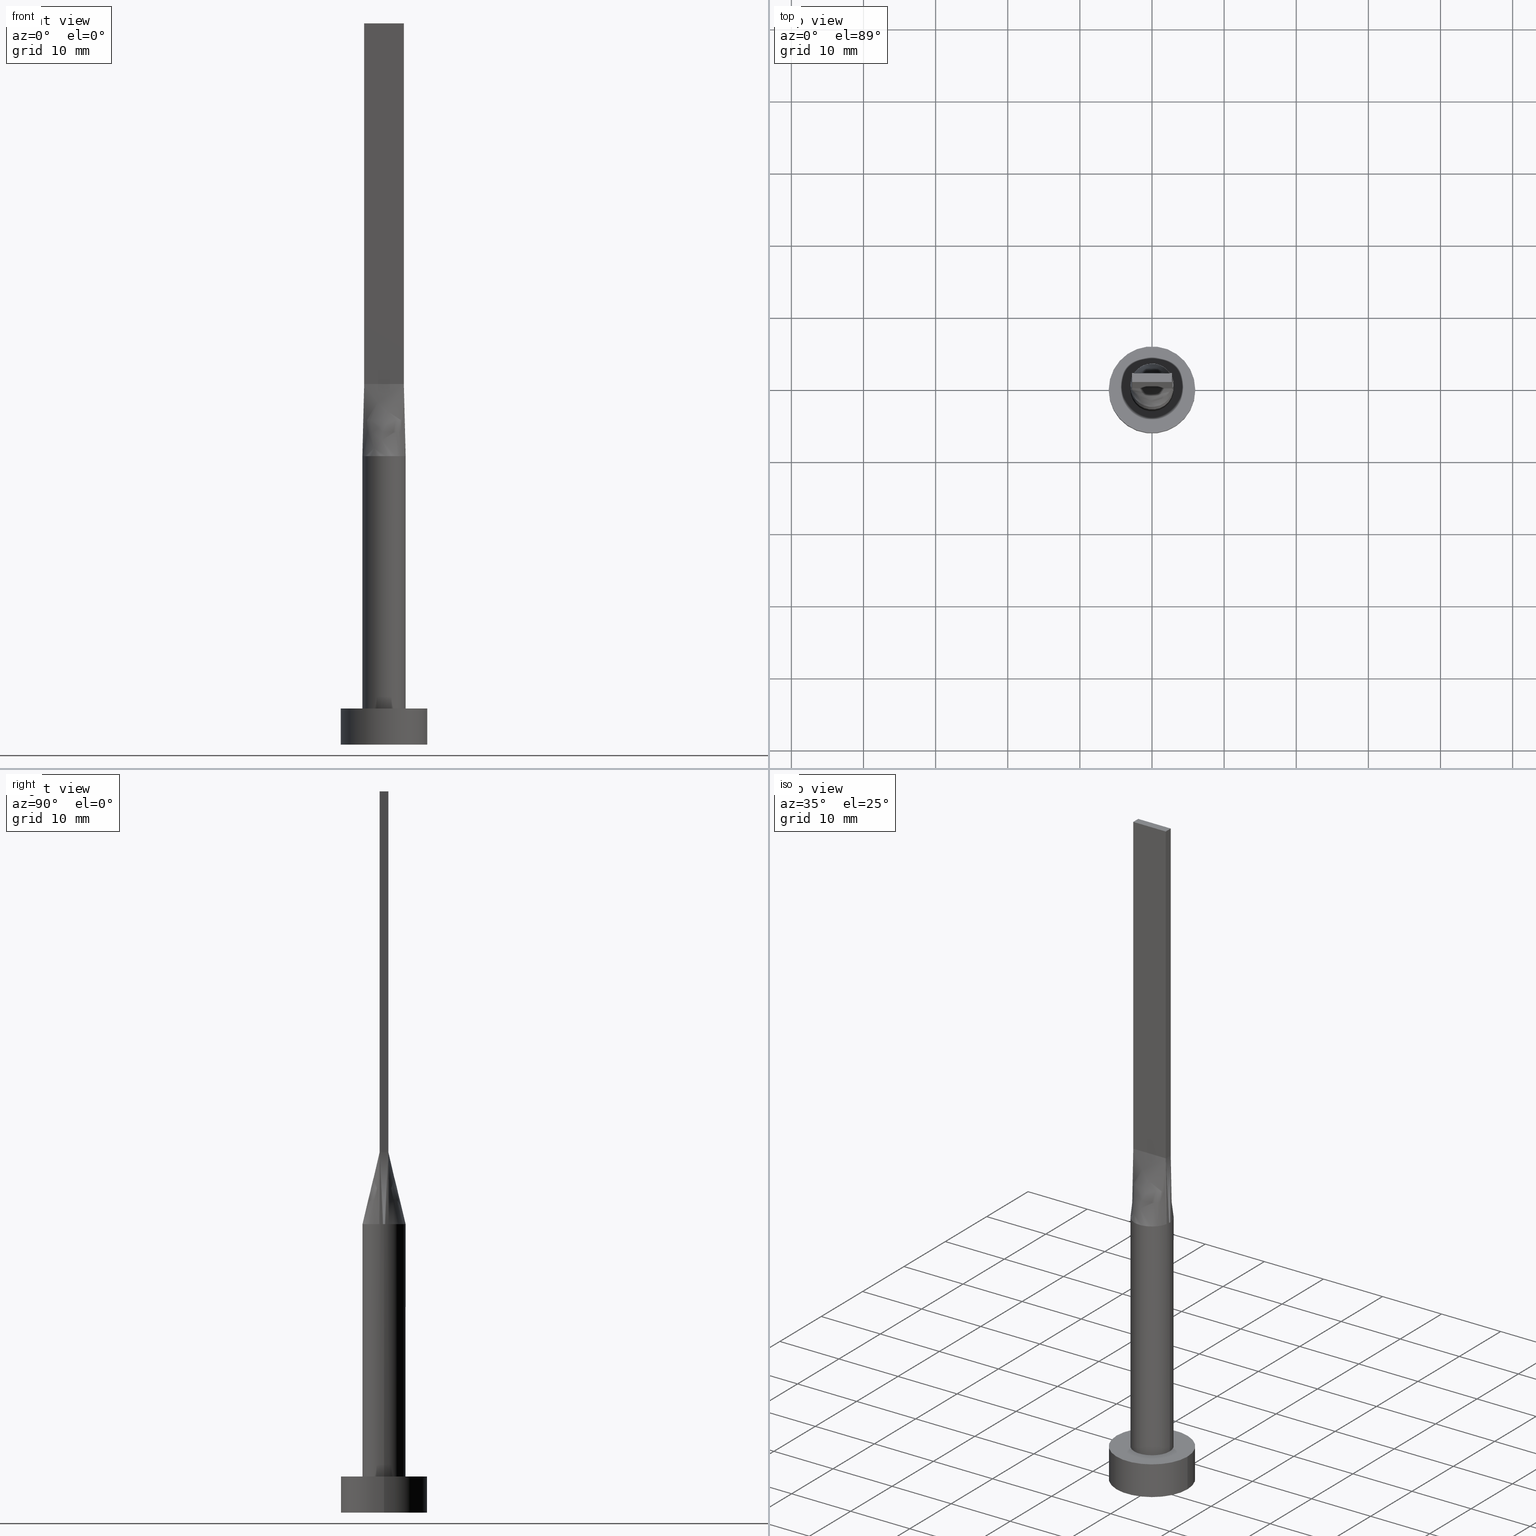
[diagram: canonical four-view strip — front | top / right | iso, engineering-drawing reading convention]
A machine part, canonical four-view strip (front | top / right | iso — engineering-drawing reading convention). The complete STEP part file that produces these views, byte-faithful:
ISO-10303-21;
HEADER;
FILE_DESCRIPTION (( 'STEP AP203' ),
    '1' );
FILE_NAME ('4707.STEP',
    '2023-02-13T11:41:56',
    ( '' ),
    ( '' ),
    'SwSTEP 2.0',
    'SolidWorks 2019',
    '' );
FILE_SCHEMA (( 'CONFIG_CONTROL_DESIGN' ));
ENDSEC;

DATA;
#1 = VERTEX_POINT ( 'NONE', #128 ) ;
#2 = FACE_OUTER_BOUND ( 'NONE', #400, .T. ) ;
#3 = CARTESIAN_POINT ( 'NONE',  ( -6.000000000000000888, 0.000000000000000000, 5.000000000000000000 ) ) ;
#4 = CARTESIAN_POINT ( 'NONE',  ( -2.878980386154874616, 0.8781411751610629368, 39.99999999999999289 ) ) ;
#5 = APPROVAL_STATUS ( 'not_yet_approved' ) ;
#6 = DIRECTION ( 'NONE',  ( 0.000000000000000000, 0.000000000000000000, 1.000000000000000000 ) ) ;
#7 = EDGE_LOOP ( 'NONE', ( #385, #421, #575, #39 ) ) ;
#8 = CARTESIAN_POINT ( 'NONE',  ( 0.4026715616377294915, 2.999999999999999556, 40.00000000000000000 ) ) ;
#9 = ORIENTED_EDGE ( 'NONE', *, *, #275, .T. ) ;
#10 = VECTOR ( 'NONE', #322, 1000.000000000000000 ) ;
#11 = EDGE_CURVE ( 'NONE', #60, #475, #310, .T. ) ;
#12 = ORIENTED_EDGE ( 'NONE', *, *, #442, .F. ) ;
#13 = CARTESIAN_POINT ( 'NONE',  ( -1.829136458871247761, 2.402980488111649660, 39.99999999999999289 ) ) ;
#14 = CARTESIAN_POINT ( 'NONE',  ( 0.8041209001220684938, -2.916015559847872751, 40.00000000000000000 ) ) ;
#15 = VECTOR ( 'NONE', #151, 1000.000000000000000 ) ;
#16 = CARTESIAN_POINT ( 'NONE',  ( -0.4583333333333329263, 0.6000000000000000888, 50.00000000000000000 ) ) ;
#17 = CARTESIAN_POINT ( 'NONE',  ( 2.291666666666666519, -0.5999999999999996447, 50.00000000000000000 ) ) ;
#18 = CARTESIAN_POINT ( 'NONE',  ( -2.328745122427008152, 1.922758842442225280, 39.99999999999998579 ) ) ;
#19 = ADVANCED_FACE ( 'NONE', ( #448 ), #90, .F. ) ;
#20 = CARTESIAN_POINT ( 'NONE',  ( -2.518011668798964653, -1.657305971825550062, 40.00000000000001421 ) ) ;
#21 = ORIENTED_EDGE ( 'NONE', *, *, #505, .F. ) ;
#22 = AXIS2_PLACEMENT_3D ( 'NONE', #544, #96, #402 ) ;
#23 = DIRECTION ( 'NONE',  ( -0.000000000000000000, -0.000000000000000000, -1.000000000000000000 ) ) ;
#24 = CARTESIAN_POINT ( 'NONE',  ( 2.518011668798964209, -1.657305971825550506, 40.00000000000001421 ) ) ;
#25 = ORIENTED_EDGE ( 'NONE', *, *, #540, .T. ) ;
#26 = DIRECTION ( 'NONE',  ( -0.01810162078030962129, -0.003949444533885605735, 0.9998283518749604415 ) ) ;
#27 = CARTESIAN_POINT ( 'NONE',  ( -1.604166666666665408, -0.5999999999999994227, 50.00000000000000000 ) ) ;
#28 = ORIENTED_EDGE ( 'NONE', *, *, #11, .T. ) ;
#29 = MECHANICAL_CONTEXT ( 'NONE', #480, 'mechanical' ) ;
#30 = CARTESIAN_POINT ( 'NONE',  ( -2.750000000000000000, 0.6000000000000001998, 100.0000000000000000 ) ) ;
#31 = ORIENTED_EDGE ( 'NONE', *, *, #325, .T. ) ;
#32 = ADVANCED_FACE ( 'NONE', ( #472 ), #201, .T. ) ;
#33 = APPLICATION_PROTOCOL_DEFINITION ( 'international standard', 'config_control_design', 1994, #422 ) ;
#34 = DIRECTION ( 'NONE',  ( -0.000000000000000000, -0.000000000000000000, -1.000000000000000000 ) ) ;
#35 = AXIS2_PLACEMENT_3D ( 'NONE', #413, #315, #456 ) ;
#36 = SECURITY_CLASSIFICATION ( '', '', #46 ) ;
#37 = APPROVAL_ROLE ( '' ) ;
#38 = DIRECTION ( 'NONE',  ( -1.000000000000000000, 0.000000000000000000, 0.000000000000000000 ) ) ;
#39 = ORIENTED_EDGE ( 'NONE', *, *, #177, .T. ) ;
#40 = FACE_OUTER_BOUND ( 'NONE', #245, .T. ) ;
#41 = ADVANCED_FACE ( 'NONE', ( #520 ), #570, .T. ) ;
#42 = ORIENTED_EDGE ( 'NONE', *, *, #275, .F. ) ;
#43 = DIRECTION ( 'NONE',  ( 0.000000000000000000, 0.000000000000000000, 1.000000000000000000 ) ) ;
#44 = VERTEX_POINT ( 'NONE', #517 ) ;
#45 = CC_DESIGN_APPROVAL ( #182, ( #168 ) ) ;
#46 = SECURITY_CLASSIFICATION_LEVEL ( 'unclassified' ) ;
#47 = CARTESIAN_POINT ( 'NONE',  ( -2.750000000000000000, -0.5999999999999994227, 50.00000000000000000 ) ) ;
#48 = CIRCLE ( 'NONE', #191, 3.000000000000000444 ) ;
#49 = ORIENTED_EDGE ( 'NONE', *, *, #268, .F. ) ;
#50 = CARTESIAN_POINT ( 'NONE',  ( -2.750000000000000000, 0.3999999999999976352, 50.00000000000000000 ) ) ;
#51 = CALENDAR_DATE ( 2023, 13, 2 ) ;
#52 = EDGE_CURVE ( 'NONE', #358, #44, #48, .T. ) ;
#53 = CARTESIAN_POINT ( 'NONE',  ( -0.8041209001220690489, 2.916015559847871419, 40.00000000000000000 ) ) ;
#54 = PERSON_AND_ORGANIZATION ( #186, #298 ) ;
#55 = AXIS2_PLACEMENT_3D ( 'NONE', #246, #558, #334 ) ;
#56 = LINE ( 'NONE', #232, #278 ) ;
#57 = CARTESIAN_POINT ( 'NONE',  ( 0.000000000000000000, 0.000000000000000000, 5.000000000000000000 ) ) ;
#58 = ORIENTED_EDGE ( 'NONE', *, *, #369, .T. ) ;
#59 = EDGE_CURVE ( 'NONE', #314, #87, #380, .T. ) ;
#60 = VERTEX_POINT ( 'NONE', #522 ) ;
#61 = CARTESIAN_POINT ( 'NONE',  ( 1.145833333333333703, 0.6000000000000000888, 50.00000000000000711 ) ) ;
#62 = CARTESIAN_POINT ( 'NONE',  ( 0.4583333333333337034, -0.5999999999999995337, 50.00000000000000000 ) ) ;
#63 = CARTESIAN_POINT ( 'NONE',  ( -2.750000000000000000, -0.5999999999999994227, 100.0000000000000000 ) ) ;
#64 = CIRCLE ( 'NONE', #164, 3.000000000000000444 ) ;
#65 = DIRECTION ( 'NONE',  ( 1.000000000000000000, 0.000000000000000000, 0.000000000000000000 ) ) ;
#66 = EDGE_CURVE ( 'NONE', #418, #104, #378, .T. ) ;
#67 = CARTESIAN_POINT ( 'NONE',  ( -2.520833333333333037, 0.6000000000000000888, 50.00000000000000000 ) ) ;
#68 = CARTESIAN_POINT ( 'NONE',  ( 2.931047284229977734, -0.6395012256501753090, 40.00000000000000000 ) ) ;
#69 = VERTEX_POINT ( 'NONE', #335 ) ;
#70 = DIRECTION ( 'NONE',  ( -0.000000000000000000, -0.000000000000000000, -1.000000000000000000 ) ) ;
#71 = CARTESIAN_POINT ( 'NONE',  ( -2.750000000000000000, 0.6000000000000001998, 100.0000000000000000 ) ) ;
#72 = EDGE_LOOP ( 'NONE', ( #272, #174, #455, #512 ) ) ;
#73 = CARTESIAN_POINT ( 'NONE',  ( 0.8041209001220689379, 2.916015559847871863, 40.00000000000000000 ) ) ;
#74 = DIRECTION ( 'NONE',  ( -0.000000000000000000, 0.000000000000000000, -1.000000000000000000 ) ) ;
#75 = PRODUCT_DEFINITION_FORMATION_WITH_SPECIFIED_SOURCE ( 'LIBOVOLN�', '', #179, .NOT_KNOWN. ) ;
#76 = DIRECTION ( 'NONE',  ( 1.000000000000000000, 0.000000000000000000, 0.000000000000000000 ) ) ;
#77 = CARTESIAN_POINT ( 'NONE',  ( 0.000000000000000000, 0.000000000000000000, 5.000000000000000000 ) ) ;
#78 = EDGE_CURVE ( 'NONE', #1, #215, #474, .T. ) ;
#79 = DIRECTION ( 'NONE',  ( 1.000000000000000000, 0.000000000000000000, 0.000000000000000000 ) ) ;
#80 = CARTESIAN_POINT ( 'NONE',  ( 0.000000000000000000, 0.000000000000000000, 40.00000000000000000 ) ) ;
#81 = PERSON_AND_ORGANIZATION ( #186, #298 ) ;
#82 = CARTESIAN_POINT ( 'NONE',  ( 2.750000000000000000, 0.6000000000000001998, 100.0000000000000000 ) ) ;
#83 = CIRCLE ( 'NONE', #353, 3.000000000000000444 ) ;
#84 = DIRECTION ( 'NONE',  ( 1.000000000000000000, 0.000000000000000000, 0.000000000000000000 ) ) ;
#85 = APPROVAL ( #506, 'NEUR�EN�' ) ;
#86 = CARTESIAN_POINT ( 'NONE',  ( -6.000000000000000888, 0.000000000000000000, 0.000000000000000000 ) ) ;
#87 = VERTEX_POINT ( 'NONE', #199 ) ;
#88 = DESIGN_CONTEXT ( 'detailed design', #422, 'design' ) ;
#89 = CARTESIAN_POINT ( 'NONE',  ( 0.000000000000000000, 0.000000000000000000, 40.00000000000000000 ) ) ;
#90 = PLANE ( 'NONE',  #224 ) ;
#91 = DATE_AND_TIME ( #361, #501 ) ;
#92 = CARTESIAN_POINT ( 'NONE',  ( -2.931047284229977734, -0.6395012256501755310, 40.00000000000000000 ) ) ;
#93 = ORIENTED_EDGE ( 'NONE', *, *, #177, .F. ) ;
#94 = CARTESIAN_POINT ( 'NONE',  ( -3.000000000000000444, 0.000000000000000000, 40.00000000000000000 ) ) ;
#95 = EDGE_CURVE ( 'NONE', #495, #60, #345, .T. ) ;
#96 = DIRECTION ( 'NONE',  ( 0.000000000000000000, 0.000000000000000000, 1.000000000000000000 ) ) ;
#97 = COORDINATED_UNIVERSAL_TIME_OFFSET ( 1, 0, .AHEAD. ) ;
#98 = LINE ( 'NONE', #143, #10 ) ;
#99 = EDGE_LOOP ( 'NONE', ( #185, #93, #428, #337 ) ) ;
#100 = VECTOR ( 'NONE', #376, 1000.000000000000000 ) ;
#101 = CARTESIAN_POINT ( 'NONE',  ( -2.931320679040856803, 0.6395611071856786012, 40.00000000000000000 ) ) ;
#102 = EDGE_LOOP ( 'NONE', ( #414, #327, #42, #183 ) ) ;
#103 = CARTESIAN_POINT ( 'NONE',  ( 1.604166666666666963, 0.6000000000000000888, 50.00000000000000000 ) ) ;
#104 = VERTEX_POINT ( 'NONE', #86 ) ;
#105 = DIRECTION ( 'NONE',  ( 1.000000000000000000, 0.000000000000000000, 0.000000000000000000 ) ) ;
#106 = DIRECTION ( 'NONE',  ( 0.000000000000000000, 0.000000000000000000, 1.000000000000000000 ) ) ;
#107 = VECTOR ( 'NONE', #165, 1000.000000000000000 ) ;
#108 = CARTESIAN_POINT ( 'NONE',  ( 0.4583333333333337589, 0.6000000000000000888, 50.00000000000000711 ) ) ;
#109 = VECTOR ( 'NONE', #461, 1000.000000000000000 ) ;
#110 = CARTESIAN_POINT ( 'NONE',  ( -0.9166666666666656305, -0.5999999999999994227, 50.00000000000000000 ) ) ;
#111 = CARTESIAN_POINT ( 'NONE',  ( 2.931047284229977290, 0.6395012256501767522, 40.00000000000000000 ) ) ;
#112 = CARTESIAN_POINT ( 'NONE',  ( -2.291666666666665630, -0.5999999999999994227, 50.00000000000000000 ) ) ;
#113 = CARTESIAN_POINT ( 'NONE',  ( -2.518011668798964653, 1.657305971825549840, 40.00000000000001421 ) ) ;
#114 = DIRECTION ( 'NONE',  ( 1.000000000000000000, -8.881784197001252323E-15, 0.000000000000000000 ) ) ;
#115 = ORIENTED_EDGE ( 'NONE', *, *, #332, .F. ) ;
#116 =( LENGTH_UNIT ( ) NAMED_UNIT ( * ) SI_UNIT ( .MILLI., .METRE. ) );
#117 = CC_DESIGN_PERSON_AND_ORGANIZATION_ASSIGNMENT ( #81, #258, ( #168 ) ) ;
#118 = CC_DESIGN_APPROVAL ( #85, ( #75 ) ) ;
#119 = LINE ( 'NONE', #530, #510 ) ;
#120 = CARTESIAN_POINT ( 'NONE',  ( 0.000000000000000000, 0.000000000000000000, 40.00000000000000000 ) ) ;
#121 = CYLINDRICAL_SURFACE ( 'NONE', #209, 3.000000000000000444 ) ;
#122 = DIRECTION ( 'NONE',  ( 0.000000000000000000, 0.000000000000000000, 1.000000000000000000 ) ) ;
#123 = DIRECTION ( 'NONE',  ( -1.000000000000000000, 0.000000000000000000, 0.000000000000000000 ) ) ;
#124 = EDGE_CURVE ( 'NONE', #539, #162, #393, .T. ) ;
#125 = B_SPLINE_CURVE_WITH_KNOTS ( 'NONE', 3,
 ( #320, #463, #504, #323, #270, #276, #458, #543, #8, #496, #53, #546, #234, #228, #187, #541, #4, #101 ),
 .UNSPECIFIED., .F., .F.,
 ( 4, 2, 2, 2, 2, 2, 2, 2, 4 ),
 ( 0.000000000000000000, 0.1250000000000000000, 0.2500000000000000000, 0.3750000000000000000, 0.5000000000000000000, 0.6250000000000000000, 0.7500000000000000000, 0.8750000000000000000, 1.000000000000000000 ),
 .UNSPECIFIED. ) ;
#126 = DIRECTION ( 'NONE',  ( 0.000000000000000000, -0.000000000000000000, -1.000000000000000000 ) ) ;
#127 = CARTESIAN_POINT ( 'NONE',  ( 2.931047284229977734, 0.6395012256501758641, 40.00000000000000000 ) ) ;
#128 = CARTESIAN_POINT ( 'NONE',  ( -2.750000000000000000, 0.6000000000000001998, 100.0000000000000000 ) ) ;
#129 = CARTESIAN_POINT ( 'NONE',  ( -3.000000000000000444, 0.000000000000000000, 5.000000000000000000 ) ) ;
#130 = CARTESIAN_POINT ( 'NONE',  ( -2.750000000000000000, 0.6000000000000001998, 50.00000000000000000 ) ) ;
#131 = ORIENTED_EDGE ( 'NONE', *, *, #435, .F. ) ;
#132 = LINE ( 'NONE', #226, #109 ) ;
#133 = ORIENTED_EDGE ( 'NONE', *, *, #350, .T. ) ;
#134 = DIRECTION ( 'NONE',  ( 0.000000000000000000, 0.000000000000000000, 1.000000000000000000 ) ) ;
#135 = ADVANCED_FACE ( 'NONE', ( #40 ), #121, .T. ) ;
#136 = APPROVAL_PERSON_ORGANIZATION ( #206, #182, #37 ) ;
#137 = CALENDAR_DATE ( 2023, 13, 2 ) ;
#138 = CARTESIAN_POINT ( 'NONE',  ( 2.750000000000000000, 0.6000000000000001998, 50.00000000000000000 ) ) ;
#139 = AXIS2_PLACEMENT_3D ( 'NONE', #170, #490, #306 ) ;
#140 = CARTESIAN_POINT ( 'NONE',  ( -2.750000000000000000, -0.4000000000000021316, 50.00000000000000000 ) ) ;
#141 = ADVANCED_FACE ( 'NONE', ( #261 ), #399, .F. ) ;
#142 = DATE_AND_TIME ( #137, #440 ) ;
#143 = CARTESIAN_POINT ( 'NONE',  ( -2.840523642114988423, 0.6197506128250878099, 45.00000000000000000 ) ) ;
#144 = EDGE_LOOP ( 'NONE', ( #205, #305, #176, #498 ) ) ;
#145 = AXIS2_PLACEMENT_3D ( 'NONE', #198, #157, #105 ) ;
#146 = CARTESIAN_POINT ( 'NONE',  ( -2.878980386154874616, 0.8781411751610629368, 39.99999999999999289 ) ) ;
#147 = EDGE_LOOP ( 'NONE', ( #133, #523, #21, #131 ) ) ;
#148 = FACE_OUTER_BOUND ( 'NONE', #156, .T. ) ;
#149 = CARTESIAN_POINT ( 'NONE',  ( 1.833333333333333481, -0.5999999999999996447, 50.00000000000000000 ) ) ;
#150 = CARTESIAN_POINT ( 'NONE',  ( 2.518011668798964209, 1.657305971825549840, 40.00000000000001421 ) ) ;
#151 = DIRECTION ( 'NONE',  ( -0.000000000000000000, -0.000000000000000000, -1.000000000000000000 ) ) ;
#152 = ADVANCED_FACE ( 'NONE', ( #349 ), #532, .F. ) ;
#153 = PLANE ( 'NONE',  #55 ) ;
#154 = AXIS2_PLACEMENT_3D ( 'NONE', #302, #308, #84 ) ;
#155 = CARTESIAN_POINT ( 'NONE',  ( 2.878980386154875060, -0.8781411751610634919, 40.00000000000000000 ) ) ;
#156 = EDGE_LOOP ( 'NONE', ( #31, #417 ) ) ;
#157 = DIRECTION ( 'NONE',  ( 0.000000000000000000, 0.000000000000000000, 1.000000000000000000 ) ) ;
#158 = DIRECTION ( 'NONE',  ( 0.000000000000000000, 0.000000000000000000, 1.000000000000000000 ) ) ;
#159 = EDGE_CURVE ( 'NONE', #60, #69, #538, .T. ) ;
#160 = DIRECTION ( 'NONE',  ( 0.000000000000000000, -1.000000000000000000, 0.000000000000000000 ) ) ;
#161 = CARTESIAN_POINT ( 'NONE',  ( 2.750000000000000000, -0.5999999999999997558, 50.00000000000000000 ) ) ;
#162 = VERTEX_POINT ( 'NONE', #447 ) ;
#163 = APPLICATION_PROTOCOL_DEFINITION ( 'international standard', 'config_control_design', 1994, #480 ) ;
#164 = AXIS2_PLACEMENT_3D ( 'NONE', #120, #122, #79 ) ;
#165 = DIRECTION ( 'NONE',  ( 0.000000000000000000, 1.000000000000000000, 0.000000000000000000 ) ) ;
#166 = AXIS2_PLACEMENT_3D ( 'NONE', #427, #528, #284 ) ;
#167 = CARTESIAN_POINT ( 'NONE',  ( 2.750000000000000000, -0.5999999999999997558, 100.0000000000000000 ) ) ;
#168 = PRODUCT_DEFINITION ( 'NEZN�M�', '', #75, #88 ) ;
#169 = COORDINATED_UNIVERSAL_TIME_OFFSET ( 1, 0, .AHEAD. ) ;
#170 = CARTESIAN_POINT ( 'NONE',  ( -2.750000000000000000, -0.5999999999999994227, 100.0000000000000000 ) ) ;
#171 = ORIENTED_EDGE ( 'NONE', *, *, #442, .T. ) ;
#172 = FACE_OUTER_BOUND ( 'NONE', #279, .T. ) ;
#173 = AXIS2_PLACEMENT_3D ( 'NONE', #252, #446, #76 ) ;
#174 = ORIENTED_EDGE ( 'NONE', *, *, #518, .F. ) ;
#175 = CARTESIAN_POINT ( 'NONE',  ( 2.999207587164657074, 0.2156168166748827775, 40.00000000000000000 ) ) ;
#176 = ORIENTED_EDGE ( 'NONE', *, *, #268, .T. ) ;
#177 = EDGE_CURVE ( 'NONE', #547, #301, #214, .T. ) ;
#178 = CARTESIAN_POINT ( 'NONE',  ( -2.931047284229977290, 0.6395012256501761971, 40.00000000000000000 ) ) ;
#179 = PRODUCT ( '4707', '4707', '', ( #29 ) ) ;
#180 = LINE ( 'NONE', #362, #239 ) ;
#181 = CARTESIAN_POINT ( 'NONE',  ( -2.999207587164656630, 0.2156168166748832771, 40.00000000000000000 ) ) ;
#182 = APPROVAL ( #346, 'NEUR�EN�' ) ;
#183 = ORIENTED_EDGE ( 'NONE', *, *, #59, .T. ) ;
#184 = DIRECTION ( 'NONE',  ( 0.000000000000000000, -1.000000000000000000, 0.000000000000000000 ) ) ;
#185 = ORIENTED_EDGE ( 'NONE', *, *, #578, .T. ) ;
#186 = PERSON ( 'NEUR�EN�', 'NEUR�EN�', 'NEUR�EN�', ('NEUR�EN�'), ('NEUR�EN�'), ('NEUR�EN�') ) ;
#187 = CARTESIAN_POINT ( 'NONE',  ( -2.518011668798964653, 1.657305971825549840, 40.00000000000001421 ) ) ;
#188 = ORIENTED_EDGE ( 'NONE', *, *, #159, .F. ) ;
#189 = CARTESIAN_POINT ( 'NONE',  ( -2.750000000000000000, 0.6000000000000001998, 50.00000000000000000 ) ) ;
#190 = CARTESIAN_POINT ( 'NONE',  ( 0.2291666666666668517, -0.5999999999999995337, 50.00000000000000000 ) ) ;
#191 = AXIS2_PLACEMENT_3D ( 'NONE', #342, #106, #65 ) ;
#192 = ORIENTED_EDGE ( 'NONE', *, *, #11, .F. ) ;
#193 = ADVANCED_FACE ( 'NONE', ( #354 ), #303, .T. ) ;
#194 = DIRECTION ( 'NONE',  ( 1.000000000000000000, 0.000000000000000000, -0.000000000000000000 ) ) ;
#195 = DIRECTION ( 'NONE',  ( -0.01810162078030962129, -0.003949444533885649103, -0.9998283518749604415 ) ) ;
#196 = CARTESIAN_POINT ( 'NONE',  ( -0.4026715616377299356, 2.999999999999999556, 40.00000000000000000 ) ) ;
#197 = CARTESIAN_POINT ( 'NONE',  ( 1.829136458871248205, -2.402980488111650992, 40.00000000000000711 ) ) ;
#198 = CARTESIAN_POINT ( 'NONE',  ( 0.000000000000000000, 0.000000000000000000, 5.000000000000000000 ) ) ;
#199 = CARTESIAN_POINT ( 'NONE',  ( -2.931315536094174057, -0.6395601373676296220, 40.00000000000000000 ) ) ;
#200 = APPROVAL_PERSON_ORGANIZATION ( #359, #415, #580 ) ;
#201 = PLANE ( 'NONE',  #166 ) ;
#202 = ORIENTED_EDGE ( 'NONE', *, *, #59, .F. ) ;
#203 = PERSON_AND_ORGANIZATION ( #186, #298 ) ;
#204 = DIRECTION ( 'NONE',  ( 0.000000000000000000, -1.000000000000000000, 0.000000000000000000 ) ) ;
#205 = ORIENTED_EDGE ( 'NONE', *, *, #363, .T. ) ;
#206 = PERSON_AND_ORGANIZATION ( #186, #298 ) ;
#207 = CARTESIAN_POINT ( 'NONE',  ( 2.750000000000000000, -0.5999999999999997558, 100.0000000000000000 ) ) ;
#208 = ORIENTED_EDGE ( 'NONE', *, *, #404, .T. ) ;
#209 = AXIS2_PLACEMENT_3D ( 'NONE', #80, #34, #38 ) ;
#210 = CALENDAR_DATE ( 2023, 13, 2 ) ;
#211 = ADVANCED_FACE ( 'NONE', ( #172 ), #449, .T. ) ;
#212 = CARTESIAN_POINT ( 'NONE',  ( 2.931047284229977290, -0.6395012256501766412, 40.00000000000000000 ) ) ;
#213 = ORIENTED_EDGE ( 'NONE', *, *, #394, .T. ) ;
#214 = LINE ( 'NONE', #82, #311 ) ;
#215 = VERTEX_POINT ( 'NONE', #130 ) ;
#216 = DATE_TIME_ROLE ( 'creation_date' ) ;
#217 = LINE ( 'NONE', #167, #107 ) ;
#218 = VECTOR ( 'NONE', #184, 1000.000000000000000 ) ;
#219 = AXIS2_PLACEMENT_3D ( 'NONE', #484, #441, #266 ) ;
#220 = EDGE_CURVE ( 'NONE', #539, #547, #217, .T. ) ;
#221 = ORIENTED_EDGE ( 'NONE', *, *, #571, .F. ) ;
#222 = SHAPE_DEFINITION_REPRESENTATION ( #406, #290 ) ;
#223 = CARTESIAN_POINT ( 'NONE',  ( -2.750000000000000000, -0.2000000000000034528, 50.00000000000000000 ) ) ;
#224 = AXIS2_PLACEMENT_3D ( 'NONE', #297, #477, #74 ) ;
#225 = EDGE_LOOP ( 'NONE', ( #221, #486, #58, #445 ) ) ;
#226 = CARTESIAN_POINT ( 'NONE',  ( 2.750000000000000000, 0.6000000000000001998, 100.0000000000000000 ) ) ;
#227 = ADVANCED_FACE ( 'NONE', ( #313 ), #494, .T. ) ;
#228 = CARTESIAN_POINT ( 'NONE',  ( -2.328745122427008152, 1.922758842442225280, 39.99999999999998579 ) ) ;
#229 = VECTOR ( 'NONE', #204, 1000.000000000000000 ) ;
#230 =( GEOMETRIC_REPRESENTATION_CONTEXT ( 3 ) GLOBAL_UNCERTAINTY_ASSIGNED_CONTEXT ( ( #312 ) ) GLOBAL_UNIT_ASSIGNED_CONTEXT ( ( #116, #493, #396 ) ) REPRESENTATION_CONTEXT ( 'NONE', 'WORKASPACE' ) );
#231 = PERSON_AND_ORGANIZATION_ROLE ( 'creator' ) ;
#232 = CARTESIAN_POINT ( 'NONE',  ( 2.840523642114988867, -0.6197506128250874768, 45.00000000000000000 ) ) ;
#233 = AXIS2_PLACEMENT_3D ( 'NONE', #535, #577, #481 ) ;
#234 = CARTESIAN_POINT ( 'NONE',  ( -1.829136458871247761, 2.402980488111649660, 39.99999999999999289 ) ) ;
#235 = ORIENTED_EDGE ( 'NONE', *, *, #52, .T. ) ;
#236 = CARTESIAN_POINT ( 'NONE',  ( -1.517787371616671654, 2.616501225271827380, 40.00000000000000000 ) ) ;
#237 = CARTESIAN_POINT ( 'NONE',  ( -1.145833333333332149, -0.5999999999999994227, 50.00000000000000000 ) ) ;
#238 = PRODUCT_RELATED_PRODUCT_CATEGORY ( 'detail', '', ( #179 ) ) ;
#239 = VECTOR ( 'NONE', #70, 1000.000000000000000 ) ;
#240 = CARTESIAN_POINT ( 'NONE',  ( 0.000000000000000000, 0.000000000000000000, 0.000000000000000000 ) ) ;
#241 = CARTESIAN_POINT ( 'NONE',  ( 0.9166666666666669627, -0.5999999999999996447, 50.00000000000000000 ) ) ;
#242 = AXIS2_PLACEMENT_3D ( 'NONE', #564, #158, #114 ) ;
#243 = FACE_OUTER_BOUND ( 'NONE', #147, .T. ) ;
#244 = CARTESIAN_POINT ( 'NONE',  ( -2.792624347712116428, -1.135030881087314647, 40.00000000000000711 ) ) ;
#245 = EDGE_LOOP ( 'NONE', ( #192, #355, #254, #282, #208, #171 ) ) ;
#246 = CARTESIAN_POINT ( 'NONE',  ( 0.000000000000000000, 0.000000000000000000, 5.000000000000000000 ) ) ;
#247 = CC_DESIGN_PERSON_AND_ORGANIZATION_ASSIGNMENT ( #411, #457, ( #75 ) ) ;
#248 = CARTESIAN_POINT ( 'NONE',  ( -0.8041209001220698260, -2.916015559847872307, 40.00000000000000000 ) ) ;
#249 = CARTESIAN_POINT ( 'NONE',  ( -1.145833333333332815, 0.6000000000000000888, 50.00000000000000000 ) ) ;
#250 = CIRCLE ( 'NONE', #145, 3.000000000000000444 ) ;
#251 = CARTESIAN_POINT ( 'NONE',  ( -2.750000000000000000, -0.5999999999999994227, 50.00000000000000000 ) ) ;
#252 = CARTESIAN_POINT ( 'NONE',  ( 0.000000000000000000, 0.000000000000000000, 5.000000000000000000 ) ) ;
#253 = LINE ( 'NONE', #30, #229 ) ;
#254 = ORIENTED_EDGE ( 'NONE', *, *, #533, .F. ) ;
#255 = LINE ( 'NONE', #576, #511 ) ;
#256 = CARTESIAN_POINT ( 'NONE',  ( 2.750000000000000000, -0.5999999999999997558, 50.00000000000000000 ) ) ;
#257 = CC_DESIGN_PERSON_AND_ORGANIZATION_ASSIGNMENT ( #203, #438, ( #179 ) ) ;
#258 = PERSON_AND_ORGANIZATION_ROLE ( 'creator' ) ;
#259 = VECTOR ( 'NONE', #357, 1000.000000000000000 ) ;
#260 = VECTOR ( 'NONE', #26, 1000.000000000000000 ) ;
#261 = FACE_OUTER_BOUND ( 'NONE', #542, .T. ) ;
#262 = ORIENTED_EDGE ( 'NONE', *, *, #369, .F. ) ;
#263 = FACE_OUTER_BOUND ( 'NONE', #7, .T. ) ;
#264 = CARTESIAN_POINT ( 'NONE',  ( 2.750000000000000000, -0.5999999999999997558, 100.0000000000000000 ) ) ;
#265 = DIRECTION ( 'NONE',  ( -0.000000000000000000, -0.000000000000000000, -1.000000000000000000 ) ) ;
#266 = DIRECTION ( 'NONE',  ( -1.000000000000000000, 0.000000000000000000, 0.000000000000000000 ) ) ;
#267 = DIRECTION ( 'NONE',  ( -0.000000000000000000, -0.000000000000000000, -1.000000000000000000 ) ) ;
#268 = EDGE_CURVE ( 'NONE', #452, #539, #347, .T. ) ;
#269 = ORIENTED_EDGE ( 'NONE', *, *, #386, .F. ) ;
#270 = CARTESIAN_POINT ( 'NONE',  ( 2.328745122427009040, 1.922758842442225946, 39.99999999999999289 ) ) ;
#271 = CIRCLE ( 'NONE', #333, 3.000000000000000444 ) ;
#272 = ORIENTED_EDGE ( 'NONE', *, *, #293, .T. ) ;
#273 = B_SPLINE_SURFACE_WITH_KNOTS ( 'NONE', 3, 1, ( 
 ( #178, #500 ),
 ( #367, #50 ),
 ( #181, #365 ),
 ( #549, #223 ),
 ( #453, #140 ),
 ( #92, #360 ) ),
 .UNSPECIFIED., .F., .F., .F.,
 ( 4, 2, 4 ),
 ( 2, 2 ),
 ( 0.000000000000000000, 0.5000000000000000000, 1.000000000000000000 ),
 ( 0.000000000000000000, 1.000000000000000000 ),
 .UNSPECIFIED. ) ;
#274 = DIRECTION ( 'NONE',  ( -0.000000000000000000, -0.000000000000000000, -1.000000000000000000 ) ) ;
#275 = EDGE_CURVE ( 'NONE', #314, #162, #119, .T. ) ;
#276 = CARTESIAN_POINT ( 'NONE',  ( 1.829136458871247761, 2.402980488111650992, 39.99999999999997868 ) ) ;
#277 = CARTESIAN_POINT ( 'NONE',  ( -2.931320679040856803, 0.6395611071856786012, 40.00000000000000000 ) ) ;
#278 = VECTOR ( 'NONE', #509, 1000.000000000000000 ) ;
#279 = EDGE_LOOP ( 'NONE', ( #307, #536, #389, #437, #269 ) ) ;
#280 = CARTESIAN_POINT ( 'NONE',  ( 6.000000000000000888, 7.347880794884120722E-16, 0.000000000000000000 ) ) ;
#281 = EDGE_LOOP ( 'NONE', ( #12, #115 ) ) ;
#282 = ORIENTED_EDGE ( 'NONE', *, *, #394, .F. ) ;
#283 = CARTESIAN_POINT ( 'NONE',  ( 2.750000000000000000, 0.6000000000000001998, 50.00000000000000000 ) ) ;
#284 = DIRECTION ( 'NONE',  ( 1.000000000000000000, 0.000000000000000000, -0.000000000000000000 ) ) ;
#285 = EDGE_CURVE ( 'NONE', #1, #452, #253, .T. ) ;
#286 = CARTESIAN_POINT ( 'NONE',  ( 2.931332910560268790, -0.6395638358681950963, 40.00000000000000000 ) ) ;
#287 = CARTESIAN_POINT ( 'NONE',  ( 2.520833333333333037, -0.5999999999999996447, 50.00000000000000000 ) ) ;
#288 = CIRCLE ( 'NONE', #154, 6.000000000000000888 ) ;
#289 = ORIENTED_EDGE ( 'NONE', *, *, #518, .T. ) ;
#290 = ADVANCED_BREP_SHAPE_REPRESENTATION ( '4707', ( #316, #552 ), #230 ) ;
#291 = CARTESIAN_POINT ( 'NONE',  ( 0.9166666666666670737, 0.6000000000000000888, 50.00000000000000711 ) ) ;
#292 = CARTESIAN_POINT ( 'NONE',  ( -0.4583333333333328152, -0.5999999999999994227, 50.00000000000000000 ) ) ;
#293 = EDGE_CURVE ( 'NONE', #215, #314, #388, .T. ) ;
#294 = LINE ( 'NONE', #473, #100 ) ;
#295 = CARTESIAN_POINT ( 'NONE',  ( -6.000000000000000888, 0.000000000000000000, 5.000000000000000000 ) ) ;
#296 = LINE ( 'NONE', #326, #260 ) ;
#297 = CARTESIAN_POINT ( 'NONE',  ( -2.750000000000000000, 0.6000000000000001998, 100.0000000000000000 ) ) ;
#298 = ORGANIZATION ( 'NEUR�EN�', 'NEUR�EN�', '' ) ;
#299 = DIRECTION ( 'NONE',  ( 1.000000000000000000, -5.913830031739115543E-17, 0.000000000000000000 ) ) ;
#300 = LOCAL_TIME ( 12, 41, 56.00000000000000000, #401 ) ;
#301 = VERTEX_POINT ( 'NONE', #138 ) ;
#302 = CARTESIAN_POINT ( 'NONE',  ( 0.000000000000000000, 0.000000000000000000, 0.000000000000000000 ) ) ;
#303 = CYLINDRICAL_SURFACE ( 'NONE', #553, 6.000000000000000888 ) ;
#304 = ADVANCED_FACE ( 'NONE', ( #2 ), #273, .T. ) ;
#305 = ORIENTED_EDGE ( 'NONE', *, *, #285, .T. ) ;
#306 = DIRECTION ( 'NONE',  ( -1.000000000000000000, 5.913830031739115543E-17, 0.000000000000000000 ) ) ;
#307 = ORIENTED_EDGE ( 'NONE', *, *, #95, .T. ) ;
#308 = DIRECTION ( 'NONE',  ( 0.000000000000000000, 0.000000000000000000, 1.000000000000000000 ) ) ;
#309 = CARTESIAN_POINT ( 'NONE',  ( 2.750000000000000000, -0.3999999999999973022, 50.00000000000000000 ) ) ;
#310 = LINE ( 'NONE', #492, #336 ) ;
#311 = VECTOR ( 'NONE', #443, 1000.000000000000000 ) ;
#312 = UNCERTAINTY_MEASURE_WITH_UNIT (LENGTH_MEASURE( 1.000000000000000082E-05 ), #116, 'distance_accuracy_value', 'NONE');
#313 = FACE_OUTER_BOUND ( 'NONE', #515, .T. ) ;
#314 = VERTEX_POINT ( 'NONE', #47 ) ;
#315 = DIRECTION ( 'NONE',  ( 0.000000000000000000, 0.000000000000000000, 1.000000000000000000 ) ) ;
#316 = MANIFOLD_SOLID_BREP ( 'P�idat vysunut�m5', #482 ) ;
#317 = VERTEX_POINT ( 'NONE', #507 ) ;
#318 = COORDINATED_UNIVERSAL_TIME_OFFSET ( 1, 0, .AHEAD. ) ;
#319 = LINE ( 'NONE', #94, #410 ) ;
#320 = CARTESIAN_POINT ( 'NONE',  ( 2.931303352270923757, 0.6395574164693091923, 40.00000000000000000 ) ) ;
#321 = EDGE_CURVE ( 'NONE', #358, #215, #98, .T. ) ;
#322 = DIRECTION ( 'NONE',  ( 0.01810162078030957619, -0.003949444533885573642, 0.9998283518749604415 ) ) ;
#323 = CARTESIAN_POINT ( 'NONE',  ( 2.518011668798964209, 1.657305971825549840, 40.00000000000001421 ) ) ;
#324 = ORIENTED_EDGE ( 'NONE', *, *, #124, .F. ) ;
#325 = EDGE_CURVE ( 'NONE', #418, #317, #407, .T. ) ;
#326 = CARTESIAN_POINT ( 'NONE',  ( 2.840523642114988867, 0.6197506128250880320, 45.00000000000000000 ) ) ;
#327 = ORIENTED_EDGE ( 'NONE', *, *, #386, .T. ) ;
#328 = CARTESIAN_POINT ( 'NONE',  ( 2.520833333333333037, 0.6000000000000000888, 50.00000000000000000 ) ) ;
#329 = CARTESIAN_POINT ( 'NONE',  ( 2.792624347712116872, -1.135030881087315757, 40.00000000000001421 ) ) ;
#330 = LINE ( 'NONE', #429, #431 ) ;
#331 = CARTESIAN_POINT ( 'NONE',  ( -1.833333333333332149, -0.5999999999999994227, 50.00000000000000000 ) ) ;
#332 = EDGE_CURVE ( 'NONE', #475, #579, #271, .T. ) ;
#333 = AXIS2_PLACEMENT_3D ( 'NONE', #57, #6, #408 ) ;
#334 = DIRECTION ( 'NONE',  ( 1.000000000000000000, 0.000000000000000000, -0.000000000000000000 ) ) ;
#335 = CARTESIAN_POINT ( 'NONE',  ( 2.931303352270923757, 0.6395574164693091923, 40.00000000000000000 ) ) ;
#336 = VECTOR ( 'NONE', #265, 1000.000000000000000 ) ;
#337 = ORIENTED_EDGE ( 'NONE', *, *, #124, .T. ) ;
#338 = CARTESIAN_POINT ( 'NONE',  ( 2.328745122427009040, 1.922758842442225946, 39.99999999999999289 ) ) ;
#339 = CARTESIAN_POINT ( 'NONE',  ( -0.2291666666666664076, -0.5999999999999995337, 50.00000000000000000 ) ) ;
#340 = VERTEX_POINT ( 'NONE', #280 ) ;
#341 = PLANE ( 'NONE',  #569 ) ;
#342 = CARTESIAN_POINT ( 'NONE',  ( 0.000000000000000000, 0.000000000000000000, 40.00000000000000000 ) ) ;
#343 = LOCAL_TIME ( 12, 41, 56.00000000000000000, #531 ) ;
#344 = CARTESIAN_POINT ( 'NONE',  ( 2.750000000000000000, 0.2000000000000038136, 50.00000000000000000 ) ) ;
#345 = CIRCLE ( 'NONE', #242, 3.000000000000000444 ) ;
#346 = APPROVAL_STATUS ( 'not_yet_approved' ) ;
#347 = LINE ( 'NONE', #451, #259 ) ;
#348 = CALENDAR_DATE ( 2023, 13, 2 ) ;
#349 = FACE_OUTER_BOUND ( 'NONE', #99, .T. ) ;
#350 = EDGE_CURVE ( 'NONE', #69, #358, #125, .T. ) ;
#351 = ORIENTED_EDGE ( 'NONE', *, *, #425, .F. ) ;
#352 = CARTESIAN_POINT ( 'NONE',  ( 2.750000000000000000, 0.6000000000000001998, 100.0000000000000000 ) ) ;
#353 = AXIS2_PLACEMENT_3D ( 'NONE', #416, #134, #405 ) ;
#354 = FACE_OUTER_BOUND ( 'NONE', #225, .T. ) ;
#355 = ORIENTED_EDGE ( 'NONE', *, *, #95, .F. ) ;
#356 = PERSON_AND_ORGANIZATION ( #186, #298 ) ;
#357 = DIRECTION ( 'NONE',  ( 1.000000000000000000, -5.913830031739115543E-17, 0.000000000000000000 ) ) ;
#358 = VERTEX_POINT ( 'NONE', #277 ) ;
#359 = PERSON_AND_ORGANIZATION ( #186, #298 ) ;
#360 = CARTESIAN_POINT ( 'NONE',  ( -2.750000000000000000, -0.5999999999999995337, 50.00000000000000000 ) ) ;
#361 = CALENDAR_DATE ( 2023, 13, 2 ) ;
#362 = CARTESIAN_POINT ( 'NONE',  ( 6.000000000000000888, 7.347880794884120722E-16, 5.000000000000000000 ) ) ;
#363 = EDGE_CURVE ( 'NONE', #547, #1, #132, .T. ) ;
#364 = CIRCLE ( 'NONE', #173, 6.000000000000000888 ) ;
#365 = CARTESIAN_POINT ( 'NONE',  ( -2.750000000000000000, 0.1999999999999964306, 50.00000000000000000 ) ) ;
#366 = DATE_TIME_ROLE ( 'classification_date' ) ;
#367 = CARTESIAN_POINT ( 'NONE',  ( -2.976487486186430331, 0.4312336333497662211, 40.00000000000000000 ) ) ;
#368 = ORIENTED_EDGE ( 'NONE', *, *, #52, .F. ) ;
#369 = EDGE_CURVE ( 'NONE', #340, #104, #489, .T. ) ;
#370 = CARTESIAN_POINT ( 'NONE',  ( 0.4026715616377294915, 2.999999999999999556, 40.00000000000000000 ) ) ;
#371 = ORIENTED_EDGE ( 'NONE', *, *, #325, .F. ) ;
#372 = APPROVAL_PERSON_ORGANIZATION ( #356, #85, #508 ) ;
#373 = ORIENTED_EDGE ( 'NONE', *, *, #350, .F. ) ;
#374 = CARTESIAN_POINT ( 'NONE',  ( 2.291666666666666519, 0.6000000000000000888, 50.00000000000000000 ) ) ;
#375 = CARTESIAN_POINT ( 'NONE',  ( 2.328745122427008152, -1.922758842442226390, 39.99999999999999289 ) ) ;
#376 = DIRECTION ( 'NONE',  ( -1.000000000000000000, -0.000000000000000000, -0.000000000000000000 ) ) ;
#377 = CC_DESIGN_PERSON_AND_ORGANIZATION_ASSIGNMENT ( #54, #231, ( #75 ) ) ;
#378 = LINE ( 'NONE', #295, #15 ) ;
#379 = CARTESIAN_POINT ( 'NONE',  ( -2.931047284229977290, 0.6395012256501755310, 40.00000000000000000 ) ) ;
#380 = LINE ( 'NONE', #561, #412 ) ;
#381 = CARTESIAN_POINT ( 'NONE',  ( -0.2291666666666662688, 0.6000000000000000888, 50.00000000000000711 ) ) ;
#382 = CARTESIAN_POINT ( 'NONE',  ( -2.328745122427009928, -1.922758842442225058, 39.99999999999997868 ) ) ;
#383 = DIRECTION ( 'NONE',  ( -0.000000000000000000, 1.000000000000000000, -0.000000000000000000 ) ) ;
#384 = CARTESIAN_POINT ( 'NONE',  ( 0.4026715616377293805, -3.000000000000001332, 40.00000000000000000 ) ) ;
#385 = ORIENTED_EDGE ( 'NONE', *, *, #505, .T. ) ;
#386 = EDGE_CURVE ( 'NONE', #495, #162, #56, .T. ) ;
#387 = CARTESIAN_POINT ( 'NONE',  ( 2.750000000000000000, 0.6000000000000001998, 100.0000000000000000 ) ) ;
#388 = LINE ( 'NONE', #568, #218 ) ;
#389 = ORIENTED_EDGE ( 'NONE', *, *, #435, .T. ) ;
#390 = CC_DESIGN_APPROVAL ( #415, ( #36 ) ) ;
#391 = CARTESIAN_POINT ( 'NONE',  ( 2.750000000000000000, 0.4000000000000025757, 50.00000000000000000 ) ) ;
#392 = DIRECTION ( 'NONE',  ( 0.000000000000000000, 0.000000000000000000, 1.000000000000000000 ) ) ;
#393 = LINE ( 'NONE', #264, #491 ) ;
#394 = EDGE_CURVE ( 'NONE', #44, #87, #83, .T. ) ;
#395 = ORIENTED_EDGE ( 'NONE', *, *, #540, .F. ) ;
#396 =( NAMED_UNIT ( * ) SI_UNIT ( $, .STERADIAN. ) SOLID_ANGLE_UNIT ( ) );
#397 = DIRECTION ( 'NONE',  ( -0.000000000000000000, -0.000000000000000000, -1.000000000000000000 ) ) ;
#398 = ORIENTED_EDGE ( 'NONE', *, *, #293, .F. ) ;
#399 = PLANE ( 'NONE',  #139 ) ;
#400 = EDGE_LOOP ( 'NONE', ( #235, #213, #202, #398, #432 ) ) ;
#401 = COORDINATED_UNIVERSAL_TIME_OFFSET ( 1, 0, .AHEAD. ) ;
#402 = DIRECTION ( 'NONE',  ( 1.000000000000000000, 0.000000000000000000, 0.000000000000000000 ) ) ;
#403 = PERSON_AND_ORGANIZATION ( #186, #298 ) ;
#404 = EDGE_CURVE ( 'NONE', #44, #579, #319, .T. ) ;
#405 = DIRECTION ( 'NONE',  ( 1.000000000000000000, 0.000000000000000000, 0.000000000000000000 ) ) ;
#406 = PRODUCT_DEFINITION_SHAPE ( 'NONE', 'NONE',  #168 ) ;
#407 = CIRCLE ( 'NONE', #22, 6.000000000000000888 ) ;
#408 = DIRECTION ( 'NONE',  ( 1.000000000000000000, 0.000000000000000000, 0.000000000000000000 ) ) ;
#409 = AXIS2_PLACEMENT_3D ( 'NONE', #89, #267, #123 ) ;
#410 = VECTOR ( 'NONE', #274, 1000.000000000000000 ) ;
#411 = PERSON_AND_ORGANIZATION ( #186, #298 ) ;
#412 = VECTOR ( 'NONE', #195, 1000.000000000000000 ) ;
#413 = CARTESIAN_POINT ( 'NONE',  ( 0.000000000000000000, 0.000000000000000000, 0.000000000000000000 ) ) ;
#414 = ORIENTED_EDGE ( 'NONE', *, *, #533, .T. ) ;
#415 = APPROVAL ( #5, 'NEUR�EN�' ) ;
#416 = CARTESIAN_POINT ( 'NONE',  ( 0.000000000000000000, 0.000000000000000000, 40.00000000000000000 ) ) ;
#417 = ORIENTED_EDGE ( 'NONE', *, *, #571, .T. ) ;
#418 = VERTEX_POINT ( 'NONE', #3 ) ;
#419 = CARTESIAN_POINT ( 'NONE',  ( -0.9166666666666661856, 0.6000000000000000888, 50.00000000000000000 ) ) ;
#420 = CARTESIAN_POINT ( 'NONE',  ( -0.4026715616377306572, -3.000000000000000000, 40.00000000000000000 ) ) ;
#421 = ORIENTED_EDGE ( 'NONE', *, *, #78, .F. ) ;
#422 = APPLICATION_CONTEXT ( 'configuration controlled 3d designs of mechanical parts and assemblies' ) ;
#423 = DIRECTION ( 'NONE',  ( 0.000000000000000000, 0.000000000000000000, 1.000000000000000000 ) ) ;
#424 = CARTESIAN_POINT ( 'NONE',  ( 1.145833333333333481, -0.5999999999999996447, 50.00000000000000000 ) ) ;
#425 = EDGE_CURVE ( 'NONE', #317, #340, #180, .T. ) ;
#426 = CARTESIAN_POINT ( 'NONE',  ( 2.792624347712116872, 1.135030881087315979, 40.00000000000002132 ) ) ;
#427 = CARTESIAN_POINT ( 'NONE',  ( 0.000000000000000000, 0.000000000000000000, 100.0000000000000000 ) ) ;
#428 = ORIENTED_EDGE ( 'NONE', *, *, #220, .F. ) ;
#429 = CARTESIAN_POINT ( 'NONE',  ( -2.750000000000000000, -0.5999999999999994227, 100.0000000000000000 ) ) ;
#430 = DIRECTION ( 'NONE',  ( -0.000000000000000000, -0.000000000000000000, -1.000000000000000000 ) ) ;
#431 = VECTOR ( 'NONE', #23, 1000.000000000000000 ) ;
#432 = ORIENTED_EDGE ( 'NONE', *, *, #321, .F. ) ;
#433 = CARTESIAN_POINT ( 'NONE',  ( -1.833333333333333037, 0.6000000000000000888, 50.00000000000000000 ) ) ;
#434 = CARTESIAN_POINT ( 'NONE',  ( -2.878980386154874616, -0.8781411751610622707, 39.99999999999999289 ) ) ;
#435 = EDGE_CURVE ( 'NONE', #69, #301, #296, .T. ) ;
#436 = CARTESIAN_POINT ( 'NONE',  ( 2.750000000000000000, -0.1999999999999961253, 50.00000000000000000 ) ) ;
#437 = ORIENTED_EDGE ( 'NONE', *, *, #578, .F. ) ;
#438 = PERSON_AND_ORGANIZATION_ROLE ( 'design_owner' ) ;
#439 = CARTESIAN_POINT ( 'NONE',  ( 2.976487486186430331, -0.4312336333497666652, 40.00000000000000000 ) ) ;
#440 = LOCAL_TIME ( 12, 41, 56.00000000000000000, #97 ) ;
#441 = DIRECTION ( 'NONE',  ( -0.000000000000000000, -0.000000000000000000, -1.000000000000000000 ) ) ;
#442 = EDGE_CURVE ( 'NONE', #579, #475, #250, .T. ) ;
#443 = DIRECTION ( 'NONE',  ( -0.000000000000000000, -0.000000000000000000, -1.000000000000000000 ) ) ;
#444 = B_SPLINE_SURFACE_WITH_KNOTS ( 'NONE', 3, 1, ( 
 ( #111, #283 ),
 ( #464, #328 ),
 ( #426, #374 ),
 ( #150, #476 ),
 ( #338, #103 ),
 ( #519, #61 ),
 ( #514, #291 ),
 ( #73, #108 ),
 ( #370, #470 ),
 ( #196, #381 ),
 ( #563, #16 ),
 ( #236, #419 ),
 ( #13, #249 ),
 ( #18, #525 ),
 ( #113, #433 ),
 ( #551, #556 ),
 ( #146, #67 ),
 ( #379, #189 ) ),
 .UNSPECIFIED., .F., .F., .F.,
 ( 4, 2, 2, 2, 2, 2, 2, 2, 4 ),
 ( 2, 2 ),
 ( 0.000000000000000000, 0.1250000000000000000, 0.2500000000000000000, 0.3750000000000000000, 0.5000000000000000000, 0.6250000000000000000, 0.7500000000000000000, 0.8750000000000000000, 1.000000000000000000 ),
 ( 0.000000000000000000, 1.000000000000000000 ),
 .UNSPECIFIED. ) ;
#445 = ORIENTED_EDGE ( 'NONE', *, *, #66, .F. ) ;
#446 = DIRECTION ( 'NONE',  ( 0.000000000000000000, 0.000000000000000000, 1.000000000000000000 ) ) ;
#447 = CARTESIAN_POINT ( 'NONE',  ( 2.750000000000000000, -0.5999999999999997558, 50.00000000000000000 ) ) ;
#448 = FACE_OUTER_BOUND ( 'NONE', #72, .T. ) ;
#449 = B_SPLINE_SURFACE_WITH_KNOTS ( 'NONE', 3, 1, ( 
 ( #212, #256 ),
 ( #439, #309 ),
 ( #537, #436 ),
 ( #175, #344 ),
 ( #581, #391 ),
 ( #127, #572 ) ),
 .UNSPECIFIED., .F., .F., .F.,
 ( 4, 2, 4 ),
 ( 2, 2 ),
 ( 0.000000000000000000, 0.5000000000000000000, 1.000000000000000000 ),
 ( 0.000000000000000000, 1.000000000000000000 ),
 .UNSPECIFIED. ) ;
#450 = CARTESIAN_POINT ( 'NONE',  ( 2.750000000000000000, -0.5999999999999997558, 100.0000000000000000 ) ) ;
#451 = CARTESIAN_POINT ( 'NONE',  ( -2.750000000000000000, -0.5999999999999994227, 100.0000000000000000 ) ) ;
#452 = VERTEX_POINT ( 'NONE', #63 ) ;
#453 = CARTESIAN_POINT ( 'NONE',  ( -2.976487486186430331, -0.4312336333497656105, 40.00000000000000000 ) ) ;
#454 = CC_DESIGN_DATE_AND_TIME_ASSIGNMENT ( #499, #366, ( #36 ) ) ;
#455 = ORIENTED_EDGE ( 'NONE', *, *, #285, .F. ) ;
#456 = DIRECTION ( 'NONE',  ( 1.000000000000000000, 0.000000000000000000, 0.000000000000000000 ) ) ;
#457 = PERSON_AND_ORGANIZATION_ROLE ( 'design_supplier' ) ;
#458 = CARTESIAN_POINT ( 'NONE',  ( 1.517787371616672099, 2.616501225271827824, 39.99999999999999289 ) ) ;
#459 = APPROVAL_DATE_TIME ( #142, #85 ) ;
#460 = ADVANCED_FACE ( 'NONE', ( #243 ), #444, .T. ) ;
#461 = DIRECTION ( 'NONE',  ( -1.000000000000000000, 0.000000000000000000, 0.000000000000000000 ) ) ;
#462 = ORIENTED_EDGE ( 'NONE', *, *, #332, .T. ) ;
#463 = CARTESIAN_POINT ( 'NONE',  ( 2.878980386154874616, 0.8781411751610636029, 39.99999999999999289 ) ) ;
#464 = CARTESIAN_POINT ( 'NONE',  ( 2.878980386154874616, 0.8781411751610636029, 39.99999999999999289 ) ) ;
#465 = CARTESIAN_POINT ( 'NONE',  ( -2.520833333333333037, -0.5999999999999994227, 50.00000000000000000 ) ) ;
#466 = PLANE ( 'NONE',  #478 ) ;
#467 = CARTESIAN_POINT ( 'NONE',  ( -2.931047284229977734, -0.6395012256501755310, 40.00000000000000000 ) ) ;
#468 = LOCAL_TIME ( 12, 41, 56.00000000000000000, #169 ) ;
#469 = ADVANCED_FACE ( 'NONE', ( #560, #148 ), #153, .T. ) ;
#470 = CARTESIAN_POINT ( 'NONE',  ( 0.2291666666666671015, 0.6000000000000001998, 50.00000000000000711 ) ) ;
#471 = AXIS2_PLACEMENT_3D ( 'NONE', #207, #488, #43 ) ;
#472 = FACE_OUTER_BOUND ( 'NONE', #144, .T. ) ;
#473 = CARTESIAN_POINT ( 'NONE',  ( -2.750000000000000000, 0.6000000000000001998, 50.00000000000000000 ) ) ;
#474 = LINE ( 'NONE', #71, #502 ) ;
#475 = VERTEX_POINT ( 'NONE', #516 ) ;
#476 = CARTESIAN_POINT ( 'NONE',  ( 1.833333333333333481, 0.6000000000000000888, 50.00000000000000000 ) ) ;
#477 = DIRECTION ( 'NONE',  ( 1.000000000000000000, 0.000000000000000000, -0.000000000000000000 ) ) ;
#478 = AXIS2_PLACEMENT_3D ( 'NONE', #240, #423, #194 ) ;
#479 = CARTESIAN_POINT ( 'NONE',  ( 0.000000000000000000, 0.000000000000000000, 0.000000000000000000 ) ) ;
#480 = APPLICATION_CONTEXT ( 'configuration controlled 3d designs of mechanical parts and assemblies' ) ;
#481 = DIRECTION ( 'NONE',  ( 1.000000000000000000, 0.000000000000000000, 0.000000000000000000 ) ) ;
#482 = CLOSED_SHELL ( 'NONE', ( #227, #193, #545, #469, #497, #135, #41, #211, #304, #460, #524, #19, #141, #152, #32 ) ) ;
#483 = ORIENTED_EDGE ( 'NONE', *, *, #404, .F. ) ;
#484 = CARTESIAN_POINT ( 'NONE',  ( 0.000000000000000000, 0.000000000000000000, 5.000000000000000000 ) ) ;
#485 = DIRECTION ( 'NONE',  ( -1.000000000000000000, 0.000000000000000000, 0.000000000000000000 ) ) ;
#486 = ORIENTED_EDGE ( 'NONE', *, *, #425, .T. ) ;
#487 = APPROVAL_DATE_TIME ( #573, #182 ) ;
#488 = DIRECTION ( 'NONE',  ( -1.000000000000000000, 0.000000000000000000, 0.000000000000000000 ) ) ;
#489 = CIRCLE ( 'NONE', #35, 6.000000000000000888 ) ;
#490 = DIRECTION ( 'NONE',  ( 5.913830031739115543E-17, 1.000000000000000000, -0.000000000000000000 ) ) ;
#491 = VECTOR ( 'NONE', #574, 1000.000000000000000 ) ;
#492 = CARTESIAN_POINT ( 'NONE',  ( 3.000000000000000444, 3.673940397442060361E-16, 40.00000000000000000 ) ) ;
#493 =( NAMED_UNIT ( * ) PLANE_ANGLE_UNIT ( ) SI_UNIT ( $, .RADIAN. ) );
#494 = CYLINDRICAL_SURFACE ( 'NONE', #409, 3.000000000000000444 ) ;
#495 = VERTEX_POINT ( 'NONE', #286 ) ;
#496 = CARTESIAN_POINT ( 'NONE',  ( -0.4026715616377299356, 2.999999999999999556, 40.00000000000000000 ) ) ;
#497 = ADVANCED_FACE ( 'NONE', ( #521 ), #466, .F. ) ;
#498 = ORIENTED_EDGE ( 'NONE', *, *, #220, .T. ) ;
#499 = DATE_AND_TIME ( #51, #300 ) ;
#500 = CARTESIAN_POINT ( 'NONE',  ( -2.750000000000000000, 0.6000000000000001998, 50.00000000000000000 ) ) ;
#501 = LOCAL_TIME ( 12, 41, 56.00000000000000000, #318 ) ;
#502 = VECTOR ( 'NONE', #430, 1000.000000000000000 ) ;
#503 = APPROVAL_DATE_TIME ( #91, #415 ) ;
#504 = CARTESIAN_POINT ( 'NONE',  ( 2.792624347712116872, 1.135030881087315979, 40.00000000000002132 ) ) ;
#505 = EDGE_CURVE ( 'NONE', #301, #215, #294, .T. ) ;
#506 = APPROVAL_STATUS ( 'not_yet_approved' ) ;
#507 = CARTESIAN_POINT ( 'NONE',  ( 6.000000000000000888, 7.347880794884120722E-16, 5.000000000000000000 ) ) ;
#508 = APPROVAL_ROLE ( '' ) ;
#509 = DIRECTION ( 'NONE',  ( -0.01810162078030962129, 0.003949444533885595326, 0.9998283518749604415 ) ) ;
#510 = VECTOR ( 'NONE', #299, 1000.000000000000000 ) ;
#511 = VECTOR ( 'NONE', #383, 1000.000000000000000 ) ;
#512 = ORIENTED_EDGE ( 'NONE', *, *, #78, .T. ) ;
#513 = CC_DESIGN_SECURITY_CLASSIFICATION ( #36, ( #75 ) ) ;
#514 = CARTESIAN_POINT ( 'NONE',  ( 1.517787371616672099, 2.616501225271827824, 39.99999999999999289 ) ) ;
#515 = EDGE_LOOP ( 'NONE', ( #188, #28, #462, #483, #368, #373 ) ) ;
#516 = CARTESIAN_POINT ( 'NONE',  ( 3.000000000000000444, 3.673940397442060361E-16, 5.000000000000000000 ) ) ;
#517 = CARTESIAN_POINT ( 'NONE',  ( -2.999603793582328315, -7.025298958605770567E-16, 40.00000000000000000 ) ) ;
#518 = EDGE_CURVE ( 'NONE', #452, #314, #330, .T. ) ;
#519 = CARTESIAN_POINT ( 'NONE',  ( 1.829136458871247761, 2.402980488111650992, 39.99999999999997868 ) ) ;
#520 = FACE_OUTER_BOUND ( 'NONE', #102, .T. ) ;
#521 = FACE_OUTER_BOUND ( 'NONE', #567, .T. ) ;
#522 = CARTESIAN_POINT ( 'NONE',  ( 2.999603793582328759, 7.166726372340513095E-16, 40.00000000000000000 ) ) ;
#523 = ORIENTED_EDGE ( 'NONE', *, *, #321, .T. ) ;
#524 = ADVANCED_FACE ( 'NONE', ( #263 ), #341, .F. ) ;
#525 = CARTESIAN_POINT ( 'NONE',  ( -1.604166666666666297, 0.6000000000000000888, 50.00000000000000000 ) ) ;
#526 = CARTESIAN_POINT ( 'NONE',  ( -1.829136458871248427, -2.402980488111649660, 39.99999999999997158 ) ) ;
#527 = CYLINDRICAL_SURFACE ( 'NONE', #219, 6.000000000000000888 ) ;
#528 = DIRECTION ( 'NONE',  ( 0.000000000000000000, 0.000000000000000000, 1.000000000000000000 ) ) ;
#529 = FACE_OUTER_BOUND ( 'NONE', #554, .T. ) ;
#530 = CARTESIAN_POINT ( 'NONE',  ( -2.750000000000000000, -0.5999999999999994227, 50.00000000000000000 ) ) ;
#531 = COORDINATED_UNIVERSAL_TIME_OFFSET ( 1, 0, .AHEAD. ) ;
#532 = PLANE ( 'NONE',  #471 ) ;
#533 = EDGE_CURVE ( 'NONE', #87, #495, #64, .T. ) ;
#534 = DATE_AND_TIME ( #348, #468 ) ;
#535 = CARTESIAN_POINT ( 'NONE',  ( 0.000000000000000000, 0.000000000000000000, 40.00000000000000000 ) ) ;
#536 = ORIENTED_EDGE ( 'NONE', *, *, #159, .T. ) ;
#537 = CARTESIAN_POINT ( 'NONE',  ( 2.999207587164657074, -0.2156168166748835269, 40.00000000000000000 ) ) ;
#538 = CIRCLE ( 'NONE', #233, 3.000000000000000444 ) ;
#539 = VERTEX_POINT ( 'NONE', #450 ) ;
#540 = EDGE_CURVE ( 'NONE', #104, #340, #288, .T. ) ;
#541 = CARTESIAN_POINT ( 'NONE',  ( -2.792624347712117761, 1.135030881087315313, 40.00000000000001421 ) ) ;
#542 = EDGE_LOOP ( 'NONE', ( #9, #324, #49, #289 ) ) ;
#543 = CARTESIAN_POINT ( 'NONE',  ( 0.8041209001220689379, 2.916015559847871863, 40.00000000000000000 ) ) ;
#544 = CARTESIAN_POINT ( 'NONE',  ( 0.000000000000000000, 0.000000000000000000, 5.000000000000000000 ) ) ;
#545 = ADVANCED_FACE ( 'NONE', ( #529 ), #527, .T. ) ;
#546 = CARTESIAN_POINT ( 'NONE',  ( -1.517787371616671654, 2.616501225271827380, 40.00000000000000000 ) ) ;
#547 = VERTEX_POINT ( 'NONE', #352 ) ;
#548 = PERSON_AND_ORGANIZATION_ROLE ( 'classification_officer' ) ;
#549 = CARTESIAN_POINT ( 'NONE',  ( -2.999207587164656630, -0.2156168166748826387, 40.00000000000000000 ) ) ;
#550 = ORIENTED_EDGE ( 'NONE', *, *, #66, .T. ) ;
#551 = CARTESIAN_POINT ( 'NONE',  ( -2.792624347712117761, 1.135030881087315313, 40.00000000000001421 ) ) ;
#552 = AXIS2_PLACEMENT_3D ( 'NONE', #479, #392, #565 ) ;
#553 = AXIS2_PLACEMENT_3D ( 'NONE', #77, #397, #485 ) ;
#554 = EDGE_LOOP ( 'NONE', ( #351, #371, #550, #25 ) ) ;
#555 = CC_DESIGN_DATE_AND_TIME_ASSIGNMENT ( #534, #216, ( #168 ) ) ;
#556 = CARTESIAN_POINT ( 'NONE',  ( -2.291666666666666519, 0.6000000000000000888, 50.00000000000000000 ) ) ;
#557 = CARTESIAN_POINT ( 'NONE',  ( 1.604166666666666741, -0.5999999999999996447, 50.00000000000000000 ) ) ;
#558 = DIRECTION ( 'NONE',  ( 0.000000000000000000, 0.000000000000000000, 1.000000000000000000 ) ) ;
#559 = CARTESIAN_POINT ( 'NONE',  ( -1.517787371616672321, -2.616501225271827380, 39.99999999999998579 ) ) ;
#560 = FACE_BOUND ( 'NONE', #281, .T. ) ;
#561 = CARTESIAN_POINT ( 'NONE',  ( -2.840523642114988867, -0.6197506128250873658, 45.00000000000000000 ) ) ;
#562 = CC_DESIGN_PERSON_AND_ORGANIZATION_ASSIGNMENT ( #403, #548, ( #36 ) ) ;
#563 = CARTESIAN_POINT ( 'NONE',  ( -0.8041209001220690489, 2.916015559847871419, 40.00000000000000000 ) ) ;
#564 = CARTESIAN_POINT ( 'NONE',  ( 0.000000000000000000, 0.000000000000000000, 40.00000000000000000 ) ) ;
#565 = DIRECTION ( 'NONE',  ( 1.000000000000000000, 0.000000000000000000, 0.000000000000000000 ) ) ;
#566 = CARTESIAN_POINT ( 'NONE',  ( 1.517787371616671876, -2.616501225271829156, 40.00000000000000711 ) ) ;
#567 = EDGE_LOOP ( 'NONE', ( #395, #262 ) ) ;
#568 = CARTESIAN_POINT ( 'NONE',  ( -2.750000000000000000, 0.6000000000000001998, 50.00000000000000000 ) ) ;
#569 = AXIS2_PLACEMENT_3D ( 'NONE', #387, #160, #126 ) ;
#570 = B_SPLINE_SURFACE_WITH_KNOTS ( 'NONE', 3, 1, ( 
 ( #467, #251 ),
 ( #434, #465 ),
 ( #244, #112 ),
 ( #20, #331 ),
 ( #382, #27 ),
 ( #526, #237 ),
 ( #559, #110 ),
 ( #248, #292 ),
 ( #420, #339 ),
 ( #384, #190 ),
 ( #14, #62 ),
 ( #566, #241 ),
 ( #197, #424 ),
 ( #375, #557 ),
 ( #24, #149 ),
 ( #329, #17 ),
 ( #155, #287 ),
 ( #68, #161 ) ),
 .UNSPECIFIED., .F., .F., .F.,
 ( 4, 2, 2, 2, 2, 2, 2, 2, 4 ),
 ( 2, 2 ),
 ( 0.000000000000000000, 0.1250000000000000833, 0.2500000000000001665, 0.3750000000000001110, 0.5000000000000001110, 0.6250000000000001110, 0.7500000000000000000, 0.8750000000000000000, 1.000000000000000000 ),
 ( 0.000000000000000000, 1.000000000000000000 ),
 .UNSPECIFIED. ) ;
#571 = EDGE_CURVE ( 'NONE', #317, #418, #364, .T. ) ;
#572 = CARTESIAN_POINT ( 'NONE',  ( 2.750000000000000000, 0.6000000000000001998, 50.00000000000000000 ) ) ;
#573 = DATE_AND_TIME ( #210, #343 ) ;
#574 = DIRECTION ( 'NONE',  ( -0.000000000000000000, -0.000000000000000000, -1.000000000000000000 ) ) ;
#575 = ORIENTED_EDGE ( 'NONE', *, *, #363, .F. ) ;
#576 = CARTESIAN_POINT ( 'NONE',  ( 2.750000000000000000, 0.6000000000000001998, 50.00000000000000000 ) ) ;
#577 = DIRECTION ( 'NONE',  ( 0.000000000000000000, 0.000000000000000000, 1.000000000000000000 ) ) ;
#578 = EDGE_CURVE ( 'NONE', #162, #301, #255, .T. ) ;
#579 = VERTEX_POINT ( 'NONE', #129 ) ;
#580 = APPROVAL_ROLE ( '' ) ;
#581 = CARTESIAN_POINT ( 'NONE',  ( 2.976487486186430331, 0.4312336333497658880, 40.00000000000000000 ) ) ;
ENDSEC;
END-ISO-10303-21;
